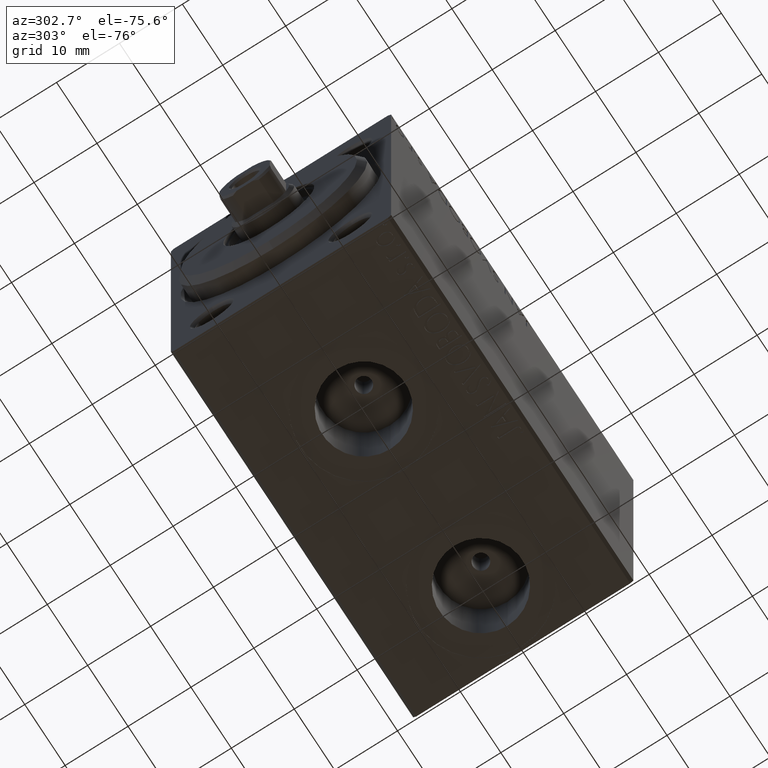
[diagram: clean part render]
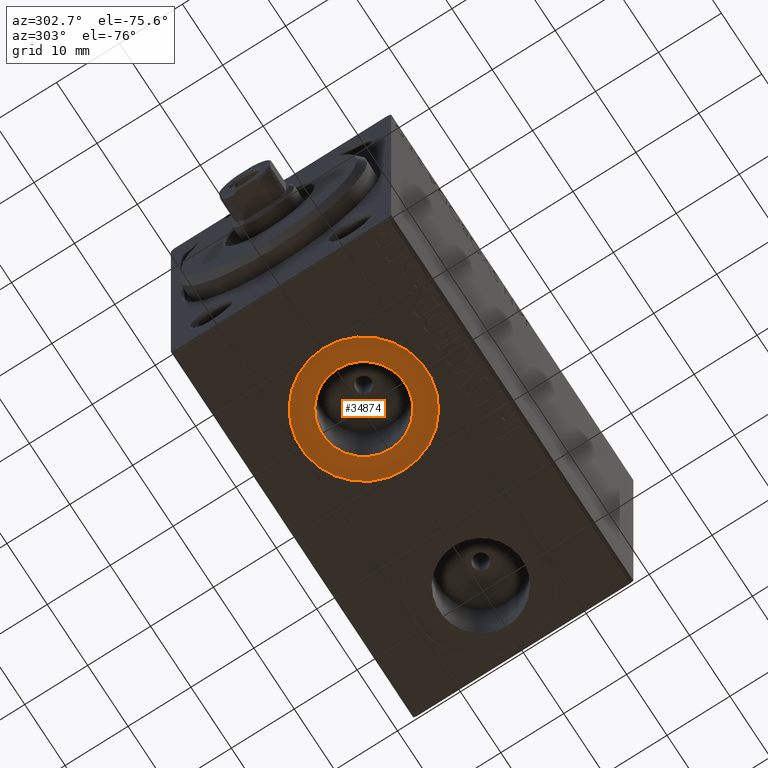
[diagram: same view with one face highlighted and labeled with its STEP entity id]
A machine part, auxiliary view. The second image highlights one B-rep face of the part: STEP entity #34874.
In plain terms, the highlighted planar face has unit normal (0, 0, -1).
Its self-contained STEP definition (entity closure, byte-faithful):
#80 = CARTESIAN_POINT ( 'NONE',  ( 20.50000000000000355, -5.452980245086756226E-15, -27.40000000000000924 ) ) ;
#1702 = CIRCLE ( 'NONE', #11277, 6.580000000000002736 ) ;
#2805 = VERTEX_POINT ( 'NONE', #36707 ) ;
#3998 = EDGE_CURVE ( 'NONE', #7983, #37801, #44274, .T. ) ;
#4810 = EDGE_LOOP ( 'NONE', ( #15876, #22182 ) ) ;
#6380 = CARTESIAN_POINT ( 'NONE',  ( 20.50000000000000355, -2.726986211408916281E-15, -27.40000000000000924 ) ) ;
#7983 = VERTEX_POINT ( 'NONE', #28333 ) ;
#10832 = DIRECTION ( 'NONE',  ( -1.000000000000000000, 0.000000000000000000, -0.000000000000000000 ) ) ;
#11277 = AXIS2_PLACEMENT_3D ( 'NONE', #6380, #44821, #44598 ) ;
#12351 = EDGE_LOOP ( 'NONE', ( #39579, #34338 ) ) ;
#12409 = CIRCLE ( 'NONE', #24875, 10.00000000000000000 ) ;
#14589 = DIRECTION ( 'NONE',  ( -1.000000000000000000, 0.000000000000000000, 0.000000000000000000 ) ) ;
#14648 = CARTESIAN_POINT ( 'NONE',  ( 20.50000000000000355, -5.452980245086756226E-15, -27.40000000000000924 ) ) ;
#14724 = PLANE ( 'NONE',  #34627 ) ;
#14947 = CARTESIAN_POINT ( 'NONE',  ( 0.000000000000000000, 0.000000000000000000, -27.40000000000000924 ) ) ;
#15176 = DIRECTION ( 'NONE',  ( 0.000000000000000000, 0.000000000000000000, -1.000000000000000000 ) ) ;
#15876 = ORIENTED_EDGE ( 'NONE', *, *, #43704, .F. ) ;
#17464 = EDGE_CURVE ( 'NONE', #43189, #2805, #34997, .T. ) ;
#21768 = DIRECTION ( 'NONE',  ( -1.000000000000000000, 0.000000000000000000, 0.000000000000000000 ) ) ;
#22182 = ORIENTED_EDGE ( 'NONE', *, *, #3998, .F. ) ;
#24875 = AXIS2_PLACEMENT_3D ( 'NONE', #80, #39649, #14589 ) ;
#25781 = CARTESIAN_POINT ( 'NONE',  ( 20.50000000000000355, -2.726986211408916281E-15, -27.40000000000000924 ) ) ;
#25893 = AXIS2_PLACEMENT_3D ( 'NONE', #25781, #30137, #33386 ) ;
#26899 = CARTESIAN_POINT ( 'NONE',  ( 13.92000000000000171, -2.726986211408916281E-15, -27.40000000000000924 ) ) ;
#28212 = EDGE_CURVE ( 'NONE', #2805, #43189, #12409, .T. ) ;
#28333 = CARTESIAN_POINT ( 'NONE',  ( 27.08000000000000540, -1.921168617569958028E-15, -27.40000000000000924 ) ) ;
#28667 = DIRECTION ( 'NONE',  ( 0.000000000000000000, 0.000000000000000000, -1.000000000000000000 ) ) ;
#30137 = DIRECTION ( 'NONE',  ( 0.000000000000000000, 0.000000000000000000, -1.000000000000000000 ) ) ;
#31989 = FACE_BOUND ( 'NONE', #4810, .T. ) ;
#32670 = FACE_OUTER_BOUND ( 'NONE', #12351, .T. ) ;
#33386 = DIRECTION ( 'NONE',  ( -1.000000000000000000, 0.000000000000000000, 0.000000000000000000 ) ) ;
#34338 = ORIENTED_EDGE ( 'NONE', *, *, #17464, .T. ) ;
#34627 = AXIS2_PLACEMENT_3D ( 'NONE', #14947, #15176, #10832 ) ;
#34874 = ADVANCED_FACE ( 'NONE', ( #31989, #32670 ), #14724, .T. ) ;
#34997 = CIRCLE ( 'NONE', #39395, 10.00000000000000000 ) ;
#36707 = CARTESIAN_POINT ( 'NONE',  ( 10.50000000000000355, -5.452980245086756226E-15, -27.40000000000000924 ) ) ;
#37801 = VERTEX_POINT ( 'NONE', #26899 ) ;
#39395 = AXIS2_PLACEMENT_3D ( 'NONE', #14648, #28667, #21768 ) ;
#39579 = ORIENTED_EDGE ( 'NONE', *, *, #28212, .T. ) ;
#39649 = DIRECTION ( 'NONE',  ( 0.000000000000000000, 0.000000000000000000, -1.000000000000000000 ) ) ;
#43160 = CARTESIAN_POINT ( 'NONE',  ( 30.50000000000000711, -4.228333445939403167E-15, -27.40000000000000924 ) ) ;
#43189 = VERTEX_POINT ( 'NONE', #43160 ) ;
#43704 = EDGE_CURVE ( 'NONE', #37801, #7983, #1702, .T. ) ;
#44274 = CIRCLE ( 'NONE', #25893, 6.580000000000002736 ) ;
#44598 = DIRECTION ( 'NONE',  ( -1.000000000000000000, 0.000000000000000000, 0.000000000000000000 ) ) ;
#44821 = DIRECTION ( 'NONE',  ( 0.000000000000000000, 0.000000000000000000, -1.000000000000000000 ) ) ;